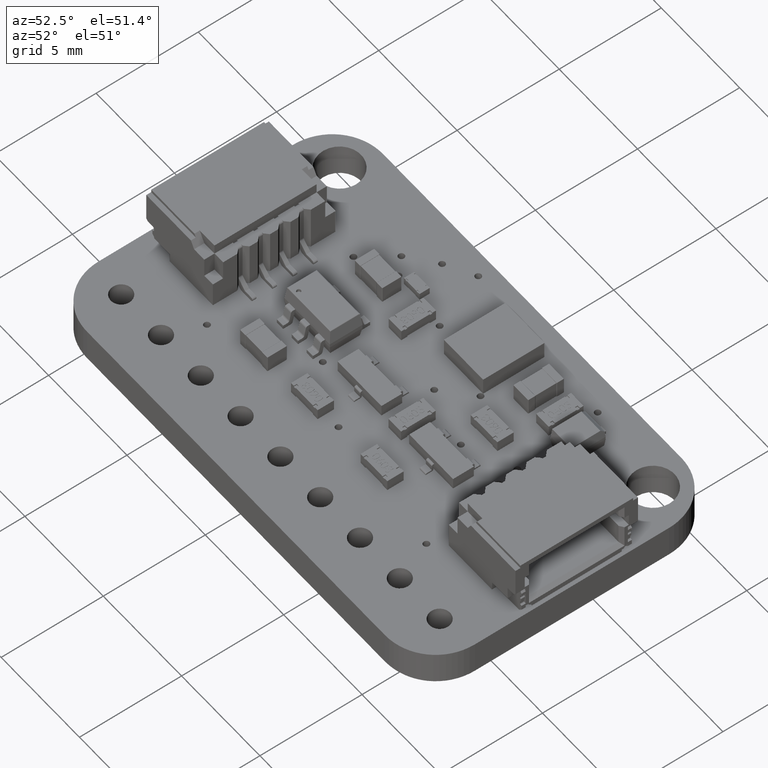
[diagram: clean part render]
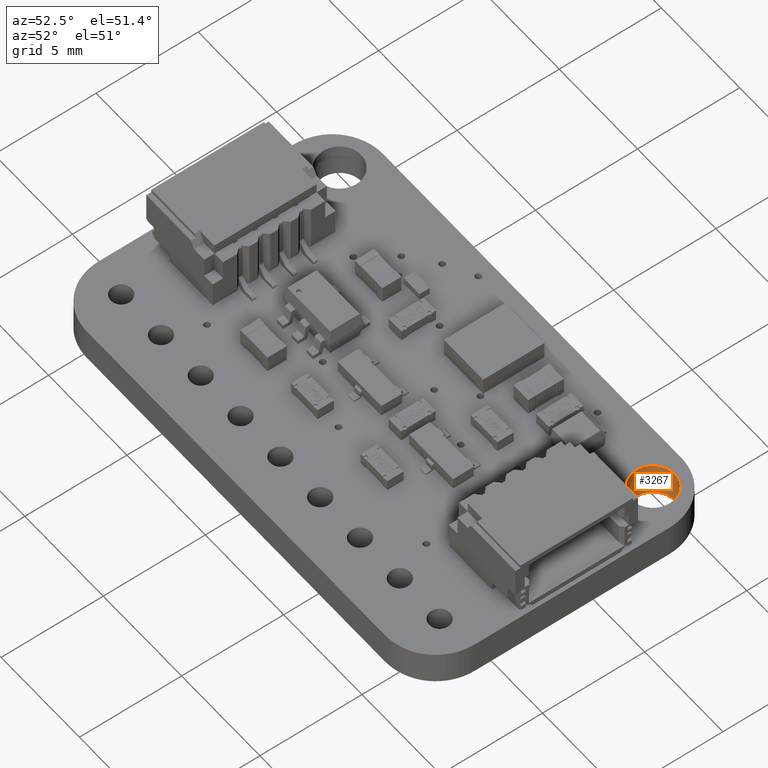
[diagram: same view with one face highlighted and labeled with its STEP entity id]
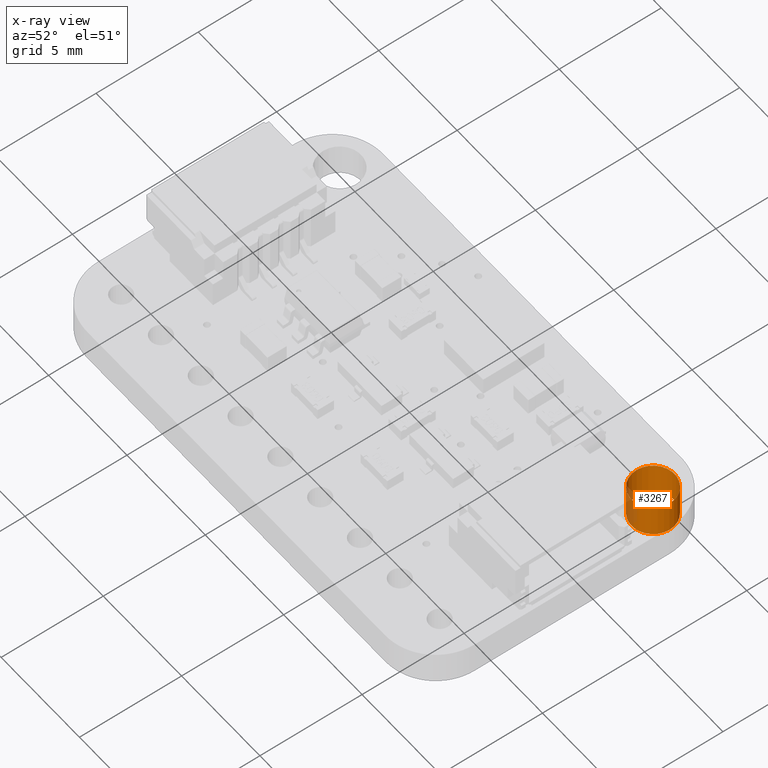
[diagram: x-ray of the same camera — body ghosted, the highlighted face saturated]
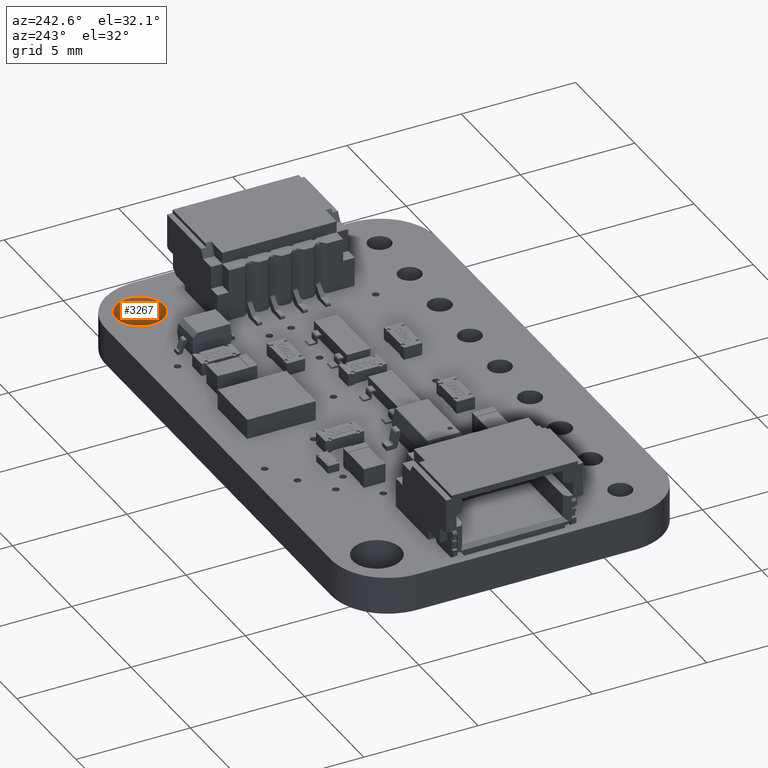
[diagram: same view with one face highlighted and labeled with its STEP entity id]
A machine part, auxiliary view. The second image highlights one B-rep face of the part: STEP entity #3267.
The next image is the same camera in x-ray: the body ghosted, the highlighted face saturated — about 12% of this face is hidden behind the body in this view.
A second angle (auxiliary view) of the same face is appended — the face is thin or edge-on in the first view.
In plain terms, the highlighted cylindrical surface (bore or boss wall) has radius 1.05 mm, axis along (-0, -0, -1).
Its self-contained STEP definition (entity closure, byte-faithful):
#3267 = ADVANCED_FACE('',(#3268),#3295,.F.);
#3268 = FACE_BOUND('',#3269,.T.);
#3269 = EDGE_LOOP('',(#3270,#3280,#3287,#3288));
#3270 = ORIENTED_EDGE('',*,*,#3271,.T.);
#3271 = EDGE_CURVE('',#3272,#3274,#3276,.T.);
#3272 = VERTEX_POINT('',#3273);
#3273 = CARTESIAN_POINT('',(21.05,-0.75,-0.82));
#3274 = VERTEX_POINT('',#3275);
#3275 = CARTESIAN_POINT('',(21.05,-0.75,0.82));
#3276 = LINE('',#3277,#3278);
#3277 = CARTESIAN_POINT('',(21.05,-0.75,-0.82));
#3278 = VECTOR('',#3279,1.);
#3279 = DIRECTION('',(0.,0.,1.));
#3280 = ORIENTED_EDGE('',*,*,#3281,.T.);
#3281 = EDGE_CURVE('',#3274,#3274,#3282,.T.);
#3282 = CIRCLE('',#3283,1.05);
#3283 = AXIS2_PLACEMENT_3D('',#3284,#3285,#3286);
#3284 = CARTESIAN_POINT('',(20.,-0.75,0.82));
#3285 = DIRECTION('',(0.,0.,1.));
#3286 = DIRECTION('',(1.,0.,-0.));
#3287 = ORIENTED_EDGE('',*,*,#3271,.F.);
#3288 = ORIENTED_EDGE('',*,*,#3289,.F.);
#3289 = EDGE_CURVE('',#3272,#3272,#3290,.T.);
#3290 = CIRCLE('',#3291,1.05);
#3291 = AXIS2_PLACEMENT_3D('',#3292,#3293,#3294);
#3292 = CARTESIAN_POINT('',(20.,-0.75,-0.82));
#3293 = DIRECTION('',(0.,0.,1.));
#3294 = DIRECTION('',(1.,0.,-0.));
#3295 = CYLINDRICAL_SURFACE('',#3296,1.05);
#3296 = AXIS2_PLACEMENT_3D('',#3297,#3298,#3299);
#3297 = CARTESIAN_POINT('',(20.,-0.75,-0.82));
#3298 = DIRECTION('',(-0.,-0.,-1.));
#3299 = DIRECTION('',(1.,0.,-0.));